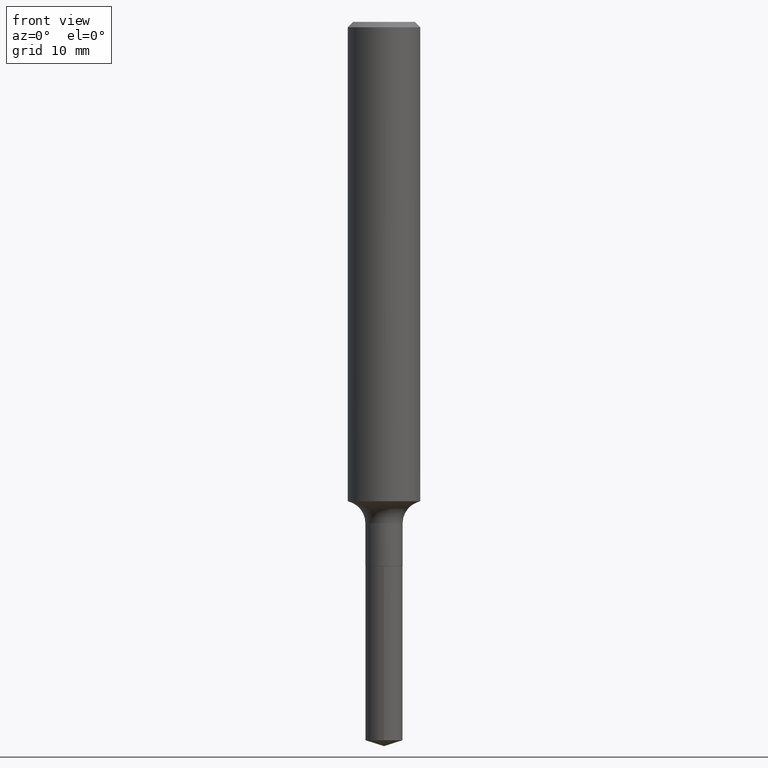
[diagram: clean part render]
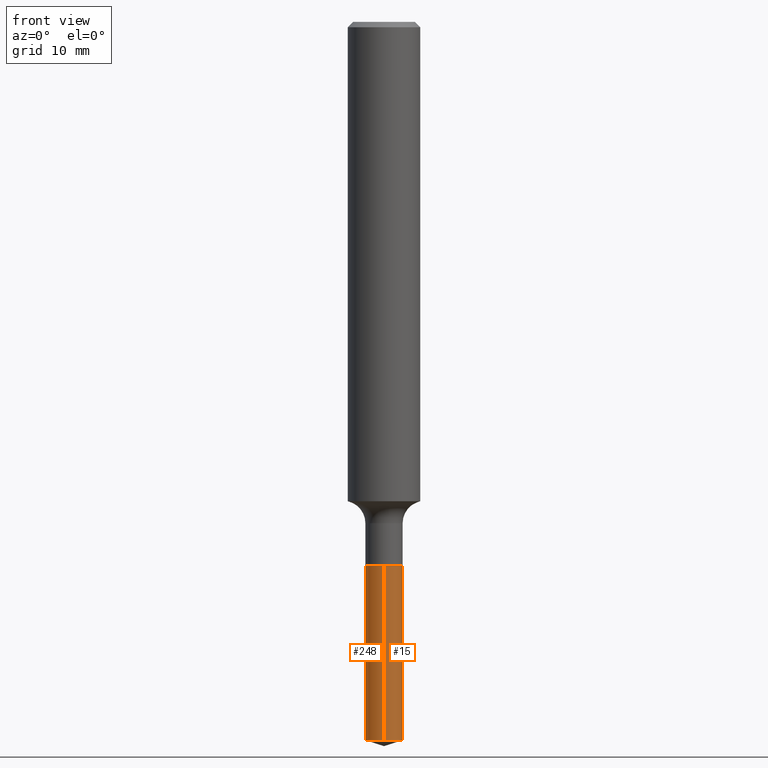
[diagram: same view with one multi-face feature highlighted, each face labeled with its STEP entity id]
A machine part, front view. The highlighted faces form ONE feature: a constant-radius fillet chain: 2 tangent blend faces with common blend radius 1.632 mm. The faces share edges in the B-rep.
Their STEP definitions:
[1] entity #248 (Cylinder):
#17 = AXIS2_PLACEMENT_3D ( 'NONE', #124, #83, #86 ) ;
#26 = EDGE_LOOP ( 'NONE', ( #133, #62, #216, #207 ) ) ;
#30 = CARTESIAN_POINT ( 'NONE',  ( -4.486553520412820437E-16, -0.06425000000000867517, -2.479742052814525533 ) ) ;
#33 = CIRCLE ( 'NONE', #17, 0.06425000000000000155 ) ;
#34 = CARTESIAN_POINT ( 'NONE',  ( 4.593813152418779608E-29, -6.558747695016850021E-15, -1.878500000000000281 ) ) ;
#46 = CARTESIAN_POINT ( 'NONE',  ( 4.565237077259252214E-16, 0.06424999999999345124, -1.878500000000000503 ) ) ;
#62 = ORIENTED_EDGE ( 'NONE', *, *, #380, .T. ) ;
#66 = DIRECTION ( 'NONE',  ( -2.445382875170297067E-29, 3.491604396947285962E-15, 1.000000000000000000 ) ) ;
#69 = CARTESIAN_POINT ( 'NONE',  ( 4.565237077259102330E-16, 0.06424999999999345124, -1.878500000000000503 ) ) ;
#83 = DIRECTION ( 'NONE',  ( -2.445382875170296787E-29, 3.491604396947285962E-15, 1.000000000000000000 ) ) ;
#86 = DIRECTION ( 'NONE',  ( -6.982962677686265922E-15, -1.000000000000000000, 4.251903492084456561E-15 ) ) ;
#104 = CARTESIAN_POINT ( 'NONE',  ( 6.064080172203654391E-29, -8.658047090253657510E-15, -2.479742052814525533 ) ) ;
#116 = CYLINDRICAL_SURFACE ( 'NONE', #314, 0.06425000000000000155 ) ;
#124 = CARTESIAN_POINT ( 'NONE',  ( 4.593813152418779608E-29, -6.558747695016850021E-15, -1.878500000000000281 ) ) ;
#133 = ORIENTED_EDGE ( 'NONE', *, *, #198, .F. ) ;
#148 = CARTESIAN_POINT ( 'NONE',  ( 4.565237077259250241E-16, 0.06424999999999135569, -2.479742052814525533 ) ) ;
#170 = AXIS2_PLACEMENT_3D ( 'NONE', #104, #256, #310 ) ;
#187 = DIRECTION ( 'NONE',  ( -2.445382875170297067E-29, 3.491604396947285962E-15, 1.000000000000000000 ) ) ;
#194 = DIRECTION ( 'NONE',  ( -2.445382875170296787E-29, 3.491604396947285962E-15, 1.000000000000000000 ) ) ;
#198 = EDGE_CURVE ( 'NONE', #245, #373, #488, .T. ) ;
#207 = ORIENTED_EDGE ( 'NONE', *, *, #393, .F. ) ;
#216 = ORIENTED_EDGE ( 'NONE', *, *, #296, .T. ) ;
#217 = LINE ( 'NONE', #374, #401 ) ;
#245 = VERTEX_POINT ( 'NONE', #148 ) ;
#247 = VERTEX_POINT ( 'NONE', #30 ) ;
#248 = ADVANCED_FACE ( 'NONE', ( #448 ), #116, .T. ) ;
#256 = DIRECTION ( 'NONE',  ( -2.445382875170296787E-29, 3.491604396947285962E-15, 1.000000000000000000 ) ) ;
#296 = EDGE_CURVE ( 'NONE', #247, #327, #217, .T. ) ;
#307 = DIRECTION ( 'NONE',  ( -6.982962677686265922E-15, -1.000000000000000000, 4.251903492084456561E-15 ) ) ;
#310 = DIRECTION ( 'NONE',  ( -6.982962677686265922E-15, -1.000000000000000000, 0.000000000000000000 ) ) ;
#314 = AXIS2_PLACEMENT_3D ( 'NONE', #34, #194, #307 ) ;
#327 = VERTEX_POINT ( 'NONE', #356 ) ;
#332 = CIRCLE ( 'NONE', #170, 0.06425000000000000155 ) ;
#356 = CARTESIAN_POINT ( 'NONE',  ( -4.486553520412967363E-16, -0.06425000000000656575, -1.878499999999999837 ) ) ;
#373 = VERTEX_POINT ( 'NONE', #46 ) ;
#374 = CARTESIAN_POINT ( 'NONE',  ( -4.486553520412967363E-16, -0.06425000000000656575, -1.878499999999999837 ) ) ;
#380 = EDGE_CURVE ( 'NONE', #245, #247, #332, .T. ) ;
#393 = EDGE_CURVE ( 'NONE', #373, #327, #33, .T. ) ;
#401 = VECTOR ( 'NONE', #187, 39.37007874015748143 ) ;
#448 = FACE_OUTER_BOUND ( 'NONE', #26, .T. ) ;
#471 = VECTOR ( 'NONE', #66, 39.37007874015748143 ) ;
#488 = LINE ( 'NONE', #69, #471 ) ;
[2] entity #15 (Cylinder):
#15 = ADVANCED_FACE ( 'NONE', ( #293 ), #32, .T. ) ;
#22 = EDGE_CURVE ( 'NONE', #247, #245, #24, .T. ) ;
#24 = CIRCLE ( 'NONE', #144, 0.06425000000000000155 ) ;
#30 = CARTESIAN_POINT ( 'NONE',  ( -4.486553520412820437E-16, -0.06425000000000867517, -2.479742052814525533 ) ) ;
#32 = CYLINDRICAL_SURFACE ( 'NONE', #287, 0.06425000000000000155 ) ;
#46 = CARTESIAN_POINT ( 'NONE',  ( 4.565237077259252214E-16, 0.06424999999999345124, -1.878500000000000503 ) ) ;
#66 = DIRECTION ( 'NONE',  ( -2.445382875170297067E-29, 3.491604396947285962E-15, 1.000000000000000000 ) ) ;
#69 = CARTESIAN_POINT ( 'NONE',  ( 4.565237077259102330E-16, 0.06424999999999345124, -1.878500000000000503 ) ) ;
#71 = DIRECTION ( 'NONE',  ( -6.982962677686265922E-15, -1.000000000000000000, 0.000000000000000000 ) ) ;
#113 = DIRECTION ( 'NONE',  ( -6.982962677686265922E-15, -1.000000000000000000, 4.251903492084456561E-15 ) ) ;
#141 = ORIENTED_EDGE ( 'NONE', *, *, #276, .F. ) ;
#144 = AXIS2_PLACEMENT_3D ( 'NONE', #306, #416, #71 ) ;
#148 = CARTESIAN_POINT ( 'NONE',  ( 4.565237077259250241E-16, 0.06424999999999135569, -2.479742052814525533 ) ) ;
#153 = DIRECTION ( 'NONE',  ( -2.445382875170296787E-29, 3.491604396947285962E-15, 1.000000000000000000 ) ) ;
#156 = CARTESIAN_POINT ( 'NONE',  ( 4.593813152418779608E-29, -6.558747695016850021E-15, -1.878500000000000281 ) ) ;
#176 = EDGE_LOOP ( 'NONE', ( #376, #472, #141, #441 ) ) ;
#187 = DIRECTION ( 'NONE',  ( -2.445382875170297067E-29, 3.491604396947285962E-15, 1.000000000000000000 ) ) ;
#198 = EDGE_CURVE ( 'NONE', #245, #373, #488, .T. ) ;
#215 = DIRECTION ( 'NONE',  ( -6.982962677686265922E-15, -1.000000000000000000, 4.251903492084456561E-15 ) ) ;
#217 = LINE ( 'NONE', #374, #401 ) ;
#245 = VERTEX_POINT ( 'NONE', #148 ) ;
#247 = VERTEX_POINT ( 'NONE', #30 ) ;
#276 = EDGE_CURVE ( 'NONE', #327, #373, #394, .T. ) ;
#287 = AXIS2_PLACEMENT_3D ( 'NONE', #156, #153, #215 ) ;
#293 = FACE_OUTER_BOUND ( 'NONE', #176, .T. ) ;
#296 = EDGE_CURVE ( 'NONE', #247, #327, #217, .T. ) ;
#306 = CARTESIAN_POINT ( 'NONE',  ( 6.064080172203654391E-29, -8.658047090253657510E-15, -2.479742052814525533 ) ) ;
#327 = VERTEX_POINT ( 'NONE', #356 ) ;
#356 = CARTESIAN_POINT ( 'NONE',  ( -4.486553520412967363E-16, -0.06425000000000656575, -1.878499999999999837 ) ) ;
#373 = VERTEX_POINT ( 'NONE', #46 ) ;
#374 = CARTESIAN_POINT ( 'NONE',  ( -4.486553520412967363E-16, -0.06425000000000656575, -1.878499999999999837 ) ) ;
#376 = ORIENTED_EDGE ( 'NONE', *, *, #22, .T. ) ;
#394 = CIRCLE ( 'NONE', #414, 0.06425000000000000155 ) ;
#401 = VECTOR ( 'NONE', #187, 39.37007874015748143 ) ;
#414 = AXIS2_PLACEMENT_3D ( 'NONE', #453, #461, #113 ) ;
#416 = DIRECTION ( 'NONE',  ( -2.445382875170296787E-29, 3.491604396947285962E-15, 1.000000000000000000 ) ) ;
#441 = ORIENTED_EDGE ( 'NONE', *, *, #296, .F. ) ;
#453 = CARTESIAN_POINT ( 'NONE',  ( 4.593813152418779608E-29, -6.558747695016850021E-15, -1.878500000000000281 ) ) ;
#461 = DIRECTION ( 'NONE',  ( -2.445382875170296787E-29, 3.491604396947285962E-15, 1.000000000000000000 ) ) ;
#471 = VECTOR ( 'NONE', #66, 39.37007874015748143 ) ;
#472 = ORIENTED_EDGE ( 'NONE', *, *, #198, .T. ) ;
#488 = LINE ( 'NONE', #69, #471 ) ;